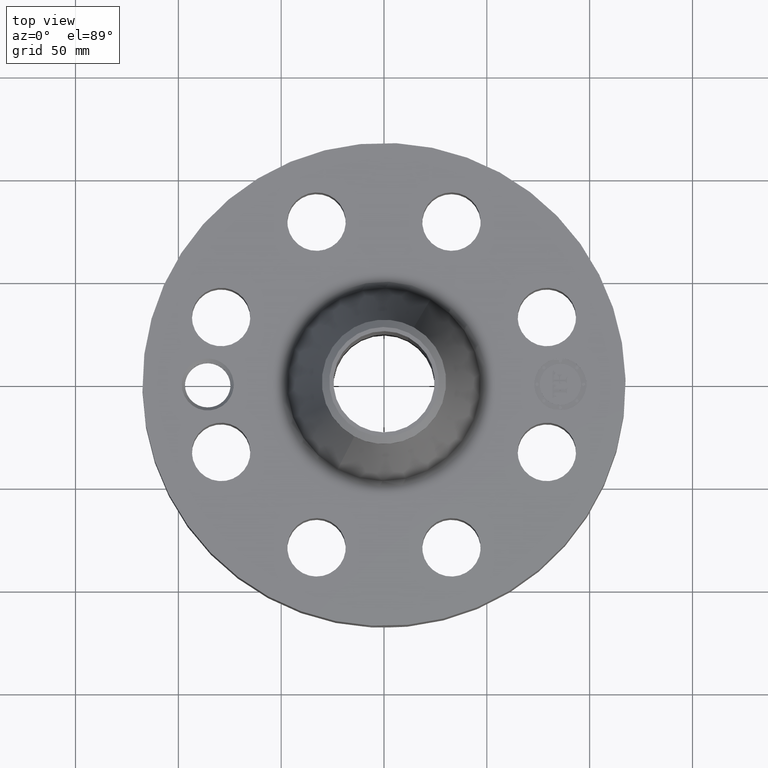
[diagram: clean part render]
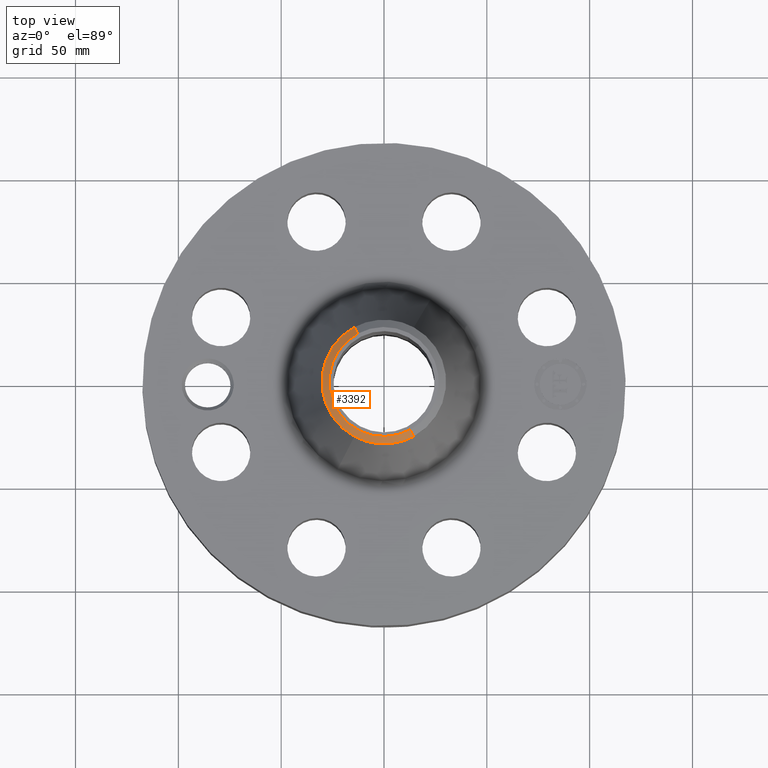
[diagram: same view with one face highlighted and labeled with its STEP entity id]
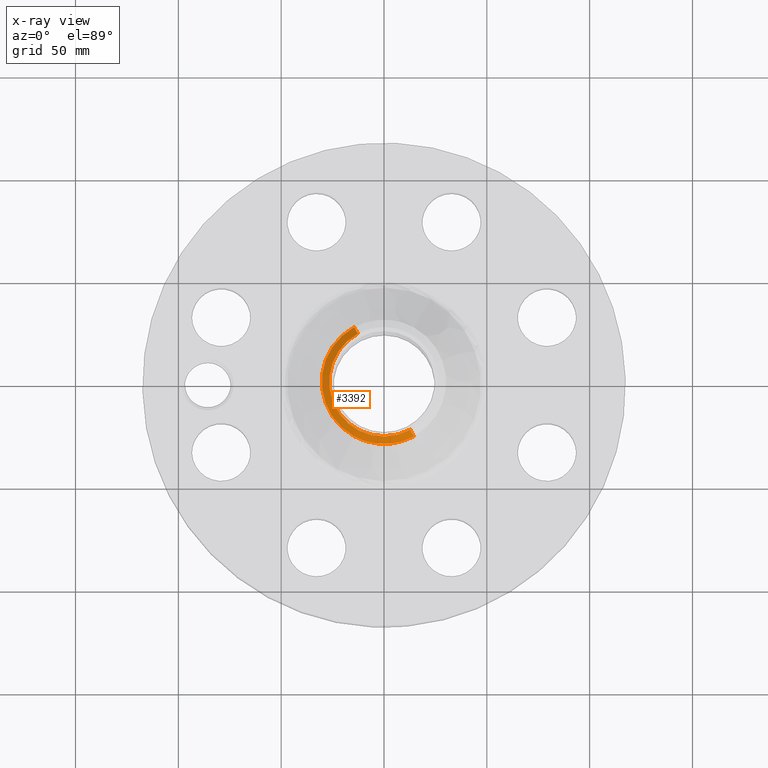
[diagram: x-ray of the same camera — body ghosted, the highlighted face saturated]
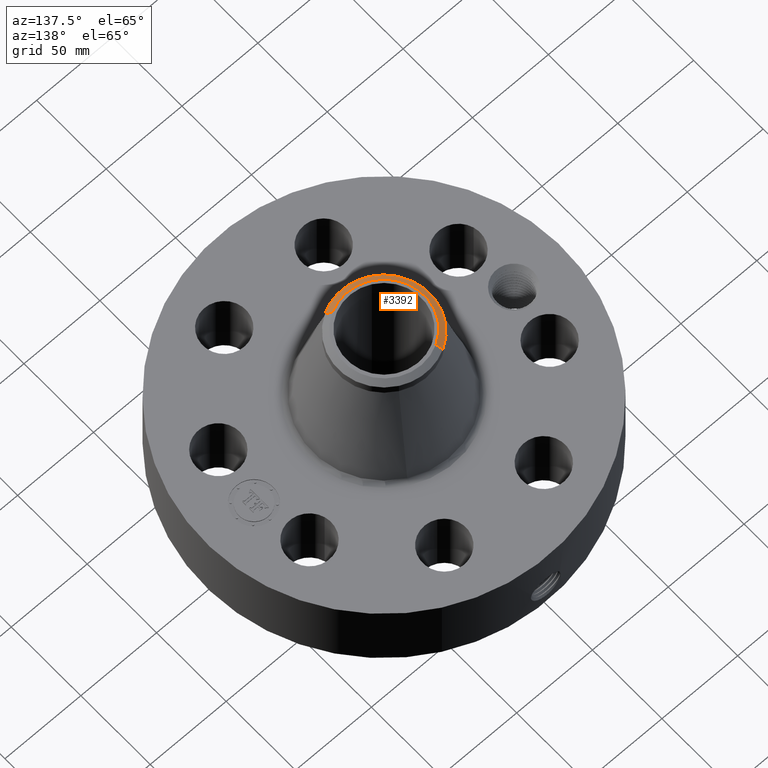
[diagram: same view with one face highlighted and labeled with its STEP entity id]
A machine part, top view. The second image highlights one B-rep face of the part: STEP entity #3392.
The next image is the same camera in x-ray: the body ghosted, the highlighted face saturated — about 0% of this face is hidden behind the body in this view.
A second angle (auxiliary view) of the same face is appended — the face is thin or edge-on in the first view.
In plain terms, the highlighted conical surface has half-angle 52.5 deg.
Its self-contained STEP definition (entity closure, byte-faithful):
#2488=AXIS2_PLACEMENT_3D('Circle Axis2P3D',#2486,#2487,$) ;
#3357=AXIS2_PLACEMENT_3D('Cone Axis2P3D',#3354,#3355,#3356) ;
#3375=AXIS2_PLACEMENT_3D('Circle Axis2P3D',#3373,#3374,$) ;
#3382=AXIS2_PLACEMENT_3D('Circle Axis2P3D',#3380,#3381,$) ;
#2481=CARTESIAN_POINT('Vertex',(0.502553102088,-0.919917282881,5.25000000002)) ;
#2483=CARTESIAN_POINT('Vertex',(-0.502553102088,0.919917282881,5.25000000002)) ;
#2486=CARTESIAN_POINT('Axis2P3D Location',(0.,0.,5.25000000002)) ;
#3354=CARTESIAN_POINT('Axis2P3D Location',(0.,0.,5.25000000002)) ;
#3359=CARTESIAN_POINT('Line Origine',(0.536534746515,-0.982120265768,5.19561192353)) ;
#3363=CARTESIAN_POINT('Vertex',(0.570516390941,-1.04432324865,5.14122384704)) ;
#3366=CARTESIAN_POINT('Line Origine',(-0.536534746515,0.982120265768,5.19561192353)) ;
#3370=CARTESIAN_POINT('Vertex',(-0.570516390941,1.04432324865,5.14122384704)) ;
#3373=CARTESIAN_POINT('Axis2P3D Location',(0.,0.,5.14122384704)) ;
#3377=CARTESIAN_POINT('Vertex',(-0.570516390941,-1.04432324865,5.14122384704)) ;
#3380=CARTESIAN_POINT('Axis2P3D Location',(0.,0.,5.14122384704)) ;
#2487=DIRECTION('Axis2P3D Direction',(0.,0.,-0.0393700787402)) ;
#3355=DIRECTION('Axis2P3D Direction',(-0.,-0.,-0.0393700787402)) ;
#3356=DIRECTION('Axis2P3D XDirection',(-0.0188750212049,0.0345504945626,0.)) ;
#3360=DIRECTION('Vector Direction',(0.014974561121,-0.02741075027,-0.023966985394)) ;
#3367=DIRECTION('Vector Direction',(-0.014974561121,0.02741075027,-0.023966985394)) ;
#3374=DIRECTION('Axis2P3D Direction',(0.,0.,-0.0393700787402)) ;
#3381=DIRECTION('Axis2P3D Direction',(0.,0.,-0.0393700787402)) ;
#3361=VECTOR('Line Direction',#3360,0.0393700787402) ;
#3368=VECTOR('Line Direction',#3367,0.0393700787402) ;
#3386=ORIENTED_EDGE('',*,*,#3365,.F.) ;
#3387=ORIENTED_EDGE('',*,*,#2490,.F.) ;
#3388=ORIENTED_EDGE('',*,*,#3372,.T.) ;
#3389=ORIENTED_EDGE('',*,*,#3379,.T.) ;
#3390=ORIENTED_EDGE('',*,*,#3384,.F.) ;
#3392=ADVANCED_FACE('PartBody',(#3391),#3358,.T.) ;
#2489=CIRCLE('generated circle',#2488,1.04824015748) ;
#3376=CIRCLE('generated circle',#3375,1.19) ;
#3383=CIRCLE('generated circle',#3382,1.19) ;
#3358=CONICAL_SURFACE('Cone',#3357,1.04824015748,0.916297857297) ;
#2490=EDGE_CURVE('',#2484,#2482,#2489,.F.) ;
#3365=EDGE_CURVE('',#2482,#3364,#3362,.T.) ;
#3372=EDGE_CURVE('',#2484,#3371,#3369,.T.) ;
#3379=EDGE_CURVE('',#3371,#3378,#3376,.F.) ;
#3384=EDGE_CURVE('',#3364,#3378,#3383,.T.) ;
#3385=EDGE_LOOP('',(#3386,#3387,#3388,#3389,#3390)) ;
#3391=FACE_OUTER_BOUND('',#3385,.T.) ;
#3362=LINE('Line',#3359,#3361) ;
#3369=LINE('Line',#3366,#3368) ;
#2482=VERTEX_POINT('',#2481) ;
#2484=VERTEX_POINT('',#2483) ;
#3364=VERTEX_POINT('',#3363) ;
#3371=VERTEX_POINT('',#3370) ;
#3378=VERTEX_POINT('',#3377) ;